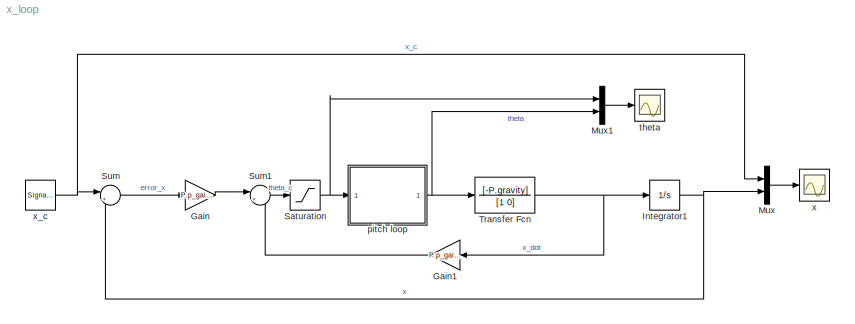
MODEL x_loop
KIND model
BLOCK [Gain] Gain
  Gain = P.p_gains.Kp_x
  OutDataTypeStr = Inherit: Inherit via internal rule
  ParamDataTypeStr = Inherit: Inherit via internal rule
  SID = 21
  SaturateOnIntegerOverflow = off
BLOCK [Gain] Gain1
  Gain = P.p_gains.Kd_x
  OutDataTypeStr = Inherit: Inherit via internal rule
  ParamDataTypeStr = Inherit: Inherit via internal rule
  SID = 34
  SaturateOnIntegerOverflow = off
BLOCK [Integrator] Integrator1
  Ports = [1, 1]
  SID = 33
BLOCK [Mux] Mux
  DisplayOption = bar
  Inputs = 2
  Ports = [2, 1]
  SID = 13
BLOCK [Mux] Mux1
  DisplayOption = bar
  Inputs = 2
  Ports = [2, 1]
  SID = 38
BLOCK [Saturate] Saturation
  InputPortMap = u0
  LowerLimit = -P.pitch_c_max
  Ports = [1, 1]
  SID = 43
  UpperLimit = P.pitch_c_max
BLOCK [Sum] Sum
  IconShape = round
  InputSameDT = off
  Inputs = |+-
  OutDataTypeStr = Inherit: Inherit via internal rule
  Ports = [2, 1]
  SID = 19
  SaturateOnIntegerOverflow = off
BLOCK [Sum] Sum1
  IconShape = round
  InputSameDT = off
  Inputs = |+-
  OutDataTypeStr = Inherit: Inherit via internal rule
  Ports = [2, 1]
  SID = 35
  SaturateOnIntegerOverflow = off
BLOCK [TransferFcn] Transfer Fcn
  Denominator = [1 0]
  Numerator = [-P.gravity]
  SID = 42
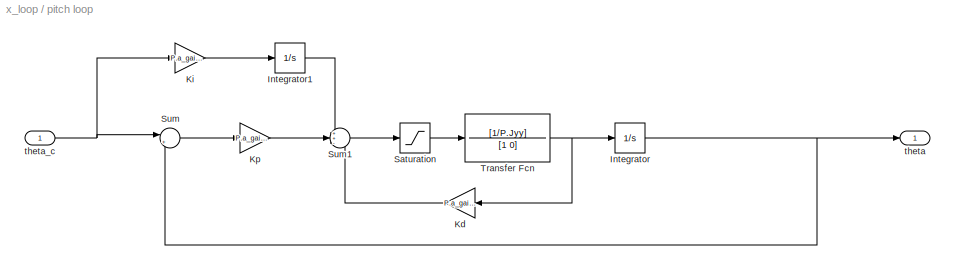
BLOCK [SubSystem] pitch loop
  FunctionWithSeparateData = off
  MaskHideContents = off
  MinAlgLoopOccurrences = off
  Opaque = off
  Ports = [1, 1]
  PropExecContextOutsideSubsystem = off
  RTWSystemCode = Auto
  RequestExecContextInheritance = off
  SID = 16
BLOCK [Integrator] pitch loop/Integrator
  Ports = [1, 1]
  SID = 1
BLOCK [Integrator] pitch loop/Integrator1
  Ports = [1, 1]
  SID = 9
BLOCK [Gain] pitch loop/Kd
  Gain = P.a_gains.Kd_pitch
  OutDataTypeStr = Inherit: Inherit via internal rule
  ParamDataTypeStr = Inherit: Inherit via internal rule
  SID = 14
  SaturateOnIntegerOverflow = off
BLOCK [Gain] pitch loop/Ki
  Gain = P.a_gains.Ki_pitch
  OutDataTypeStr = Inherit: Inherit via internal rule
  ParamDataTypeStr = Inherit: Inherit via internal rule
  SID = 6
  SaturateOnIntegerOverflow = off
BLOCK [Gain] pitch loop/Kp
  Gain = P.a_gains.Kp_pitch
  OutDataTypeStr = Inherit: Inherit via internal rule
  ParamDataTypeStr = Inherit: Inherit via internal rule
  SID = 3
  SaturateOnIntegerOverflow = off
BLOCK [Saturate] pitch loop/Saturation
  InputPortMap = u0
  Ports = [1, 1]
  SID = 7
BLOCK [Sum] pitch loop/Sum
  IconShape = round
  InputSameDT = off
  Inputs = |+-
  OutDataTypeStr = Inherit: Inherit via internal rule
  Ports = [2, 1]
  SID = 5
  SaturateOnIntegerOverflow = off
BLOCK [Sum] pitch loop/Sum1
  IconShape = round
  InputSameDT = off
  Inputs = ++-
  OutDataTypeStr = Inherit: Inherit via internal rule
  Ports = [3, 1]
  SID = 8
  SaturateOnIntegerOverflow = off
BLOCK [TransferFcn] pitch loop/Transfer Fcn
  Denominator = [1 0]
  Numerator = [1/P.Jyy]
  SID = 2
BLOCK [Outport] pitch loop/theta
  IconDisplay = Port number
  SID = 18
BLOCK [Inport] pitch loop/theta_c
  IconDisplay = Port number
  SID = 17
BLOCK [Scope] theta
  DataFormat = StructureWithTime
  Floating = off
  NumInputPorts = 1
  Ports = [1]
  SID = 39
  SampleTime = 0
  SaveName = ScopeData1
  ShowLegends = off
  YMax = 750
  YMin = -50
  ZoomMode = yonly
BLOCK [Scope] x
  DataFormat = StructureWithTime
  Floating = off
  NumInputPorts = 1
  Ports = [1]
  SID = 12
  SampleTime = 0
  ShowLegends = off
  TimeRange = 50
  YMax = 0.3
  YMin = -0.4
  ZoomMode = yonly
BLOCK [SignalGenerator] x_c
  Amplitude = 0.25
  Frequency = .05
  Ports = [0, 1]
  SID = 15
  WaveForm = square
LINE Gain1:1 -> Sum1:2
LINE Gain:1 -> Sum1:1
NET Integrator1:1 -> Mux:2, Sum:2
LINE Mux1:1 -> theta:1
LINE Mux:1 -> x:1
NET Saturation:1 -> Mux1:1, pitch loop:1
LINE Sum1:1 -> Saturation:1
LINE Sum:1 -> Gain:1
NET Transfer Fcn:1 -> Gain1:1, Integrator1:1
LINE pitch loop/Integrator1:1 -> pitch loop/Sum1:1
NET pitch loop/Integrator:1 -> pitch loop/Sum:2, pitch loop/theta:1
LINE pitch loop/Kd:1 -> pitch loop/Sum1:3
LINE pitch loop/Ki:1 -> pitch loop/Integrator1:1
LINE pitch loop/Kp:1 -> pitch loop/Sum1:2
LINE pitch loop/Saturation:1 -> pitch loop/Transfer Fcn:1
LINE pitch loop/Sum1:1 -> pitch loop/Saturation:1
LINE pitch loop/Sum:1 -> pitch loop/Kp:1
NET pitch loop/Transfer Fcn:1 -> pitch loop/Integrator:1, pitch loop/Kd:1
NET pitch loop/theta_c:1 -> pitch loop/Ki:1, pitch loop/Sum:1
NET pitch loop:1 -> Mux1:2, Transfer Fcn:1
NET x_c:1 -> Mux:1, Sum:1
note: NET lines group one-source signal fan-out (src -> all destinations, sorted); 1:1 wires keep LINE
